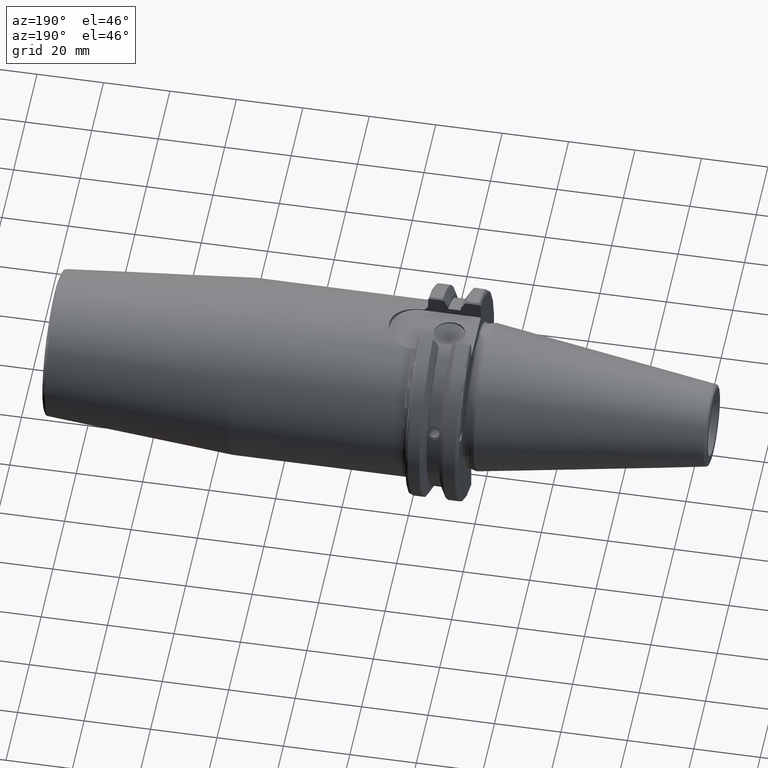
[diagram: clean part render]
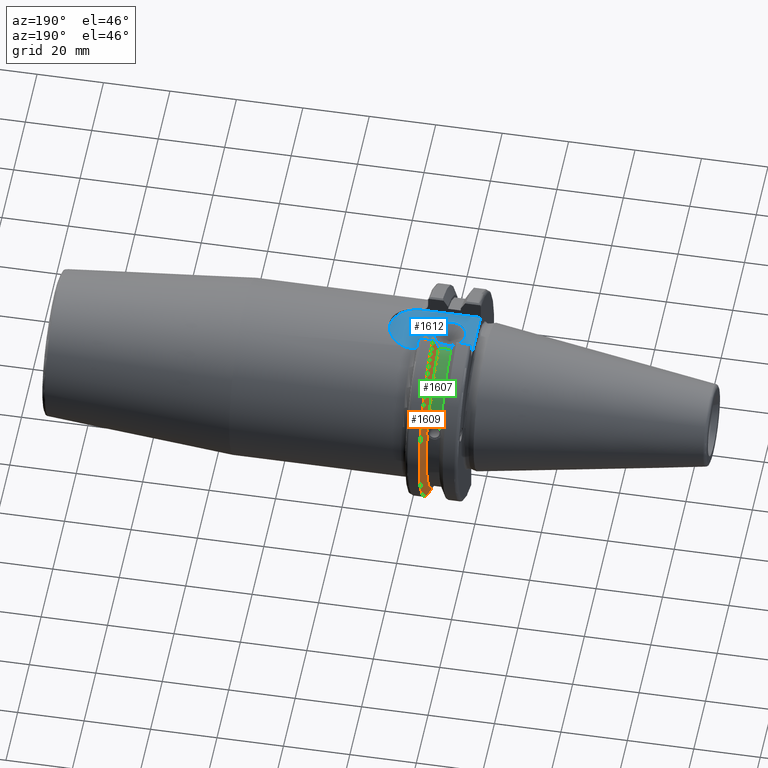
[diagram: same view with three faces highlighted in distinct colors, each labeled with its STEP entity id]
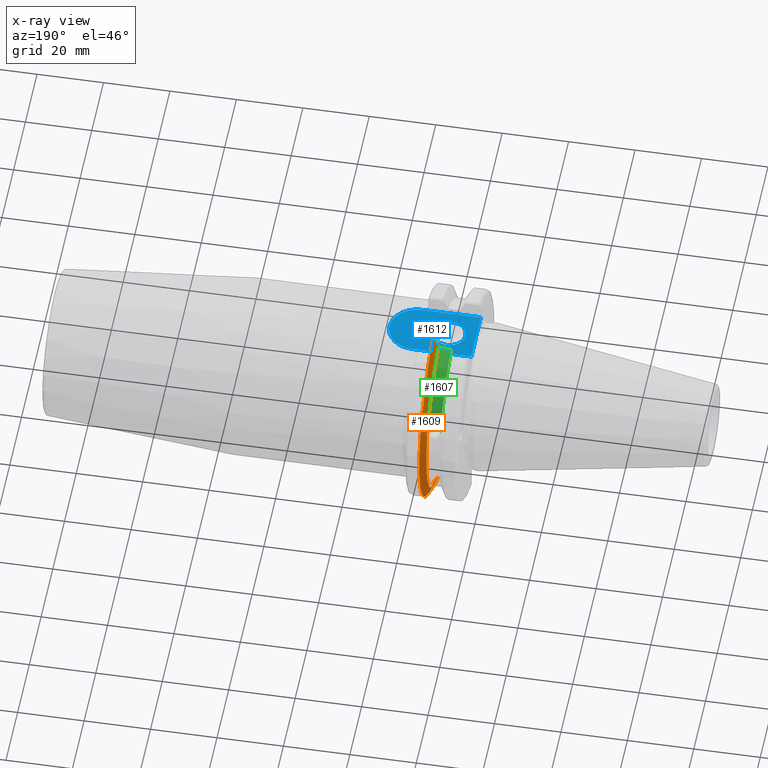
[diagram: x-ray of the same camera — body ghosted, the three highlighted faces saturated]
A machine part, auxiliary view with three faces highlighted in distinct colors.
The next image is the same camera in x-ray (body ghosted, the three faces saturated) — at least one of them is partly hidden behind the body in this view.
Their STEP definitions:

[orange] entity #1609 — the highlighted conical surface has half-angle 60 deg.
#23=(
BOUNDED_CURVE()
B_SPLINE_CURVE(2,(#2938,#2939,#2940),.UNSPECIFIED.,.F.,.F.)
B_SPLINE_CURVE_WITH_KNOTS((3,3),(0.329353533631226,0.393258405001025),
 .UNSPECIFIED.)
CURVE()
GEOMETRIC_REPRESENTATION_ITEM()
RATIONAL_B_SPLINE_CURVE((1.00047644010577,1.00028444218285,1.))
REPRESENTATION_ITEM('')
);
#24=(
BOUNDED_CURVE()
B_SPLINE_CURVE(2,(#2952,#2953,#2954),.UNSPECIFIED.,.F.,.F.)
B_SPLINE_CURVE_WITH_KNOTS((3,3),(0.0550586467393769,0.331607789535852),
 .UNSPECIFIED.)
CURVE()
GEOMETRIC_REPRESENTATION_ITEM()
RATIONAL_B_SPLINE_CURVE((1.00031614444922,1.00095203903643,1.))
REPRESENTATION_ITEM('')
);
#29=(
BOUNDED_CURVE()
B_SPLINE_CURVE(2,(#3108,#3109,#3110),.UNSPECIFIED.,.F.,.F.)
B_SPLINE_CURVE_WITH_KNOTS((3,3),(0.,0.276549142795274),.UNSPECIFIED.)
CURVE()
GEOMETRIC_REPRESENTATION_ITEM()
RATIONAL_B_SPLINE_CURVE((1.,1.00095203903599,1.00031614444907))
REPRESENTATION_ITEM('')
);
#30=(
BOUNDED_CURVE()
B_SPLINE_CURVE(2,(#3126,#3127,#3128),.UNSPECIFIED.,.F.,.F.)
B_SPLINE_CURVE_WITH_KNOTS((3,3),(0.,0.0639048713675655),.UNSPECIFIED.)
CURVE()
GEOMETRIC_REPRESENTATION_ITEM()
RATIONAL_B_SPLINE_CURVE((1.,1.00028444218286,1.00047644010578))
REPRESENTATION_ITEM('')
);
#113=CONICAL_SURFACE('',#1817,30.3546886482472,1.0471975511966);
#207=FACE_OUTER_BOUND('',#313,.T.);
#313=EDGE_LOOP('',(#1447,#1448,#1449,#1450,#1451,#1452,#1453,#1454,#1455));
#369=CIRCLE('',#1748,28.9593772964944);
#392=CIRCLE('',#1803,31.75);
#399=CIRCLE('',#1818,28.9593772964944);
#596=B_SPLINE_CURVE_WITH_KNOTS('',3,(#2744,#2745,#2746,#2747,#2748,#2749,
#2750,#2751),.UNSPECIFIED.,.F.,.F.,(4,2,2,4),(0.451995700189023,0.464547828547662,
0.504528771685167,0.544509714822673),.UNSPECIFIED.);
#600=B_SPLINE_CURVE_WITH_KNOTS('',3,(#2806,#2807,#2808,#2809,#2810,#2811,
#2812,#2813),.UNSPECIFIED.,.F.,.F.,(4,2,2,4),(0.544509714822673,0.584490657960178,
0.624471601097683,0.637023729456323),.UNSPECIFIED.);
#699=VERTEX_POINT('',#2741);
#700=VERTEX_POINT('',#2743);
#707=VERTEX_POINT('',#2804);
#716=VERTEX_POINT('',#2846);
#739=VERTEX_POINT('',#2935);
#740=VERTEX_POINT('',#2937);
#765=VERTEX_POINT('',#3105);
#766=VERTEX_POINT('',#3107);
#769=VERTEX_POINT('',#3124);
#891=EDGE_CURVE('',#700,#699,#596,.T.);
#899=EDGE_CURVE('',#699,#707,#600,.T.);
#911=EDGE_CURVE('',#716,#700,#369,.T.);
#943=EDGE_CURVE('',#739,#740,#23,.T.);
#948=EDGE_CURVE('',#739,#716,#24,.T.);
#988=EDGE_CURVE('',#766,#765,#29,.T.);
#997=EDGE_CURVE('',#769,#765,#30,.T.);
#998=EDGE_CURVE('',#740,#769,#392,.T.);
#1008=EDGE_CURVE('',#707,#766,#399,.T.);
#1447=ORIENTED_EDGE('',*,*,#891,.T.);
#1448=ORIENTED_EDGE('',*,*,#899,.T.);
#1449=ORIENTED_EDGE('',*,*,#1008,.T.);
#1450=ORIENTED_EDGE('',*,*,#988,.T.);
#1451=ORIENTED_EDGE('',*,*,#997,.F.);
#1452=ORIENTED_EDGE('',*,*,#998,.F.);
#1453=ORIENTED_EDGE('',*,*,#943,.F.);
#1454=ORIENTED_EDGE('',*,*,#948,.T.);
#1455=ORIENTED_EDGE('',*,*,#911,.T.);
#1609=ADVANCED_FACE('',(#207),#113,.T.);
#1748=AXIS2_PLACEMENT_3D('',#2847,#2088,#2089);
#1803=AXIS2_PLACEMENT_3D('',#3130,#2237,#2238);
#1817=AXIS2_PLACEMENT_3D('',#3150,#2268,#2269);
#1818=AXIS2_PLACEMENT_3D('',#3151,#2270,#2271);
#2088=DIRECTION('center_axis',(1.,0.,0.));
#2089=DIRECTION('ref_axis',(0.,0.,-1.));
#2237=DIRECTION('center_axis',(1.,0.,0.));
#2238=DIRECTION('ref_axis',(0.,0.,-1.));
#2268=DIRECTION('center_axis',(1.,0.,0.));
#2269=DIRECTION('ref_axis',(0.,1.,0.));
#2270=DIRECTION('center_axis',(1.,0.,0.));
#2271=DIRECTION('ref_axis',(0.,0.,-1.));
#2741=CARTESIAN_POINT('',(13.2341,27.51401829017,10.0142836826778));
#2743=CARTESIAN_POINT('',(13.0491,27.4956274489925,9.09043478536244));
#2744=CARTESIAN_POINT('Ctrl Pts',(13.0491,27.4956274489925,9.09043478536245));
#2745=CARTESIAN_POINT('Ctrl Pts',(13.0632204071996,27.5087667900418,9.12860597076217));
#2746=CARTESIAN_POINT('Ctrl Pts',(13.0766929817857,27.5206055003513,9.16696618806877));
#2747=CARTESIAN_POINT('Ctrl Pts',(13.130081441159,27.5642934663232,9.32791534028656));
#2748=CARTESIAN_POINT('Ctrl Pts',(13.1682197084175,27.5867382255984,9.46717946402648));
#2749=CARTESIAN_POINT('Ctrl Pts',(13.2204106446058,27.5847569104122,9.74771639360672));
#2750=CARTESIAN_POINT('Ctrl Pts',(13.2341,27.559599249844,9.8890510252165));
#2751=CARTESIAN_POINT('Ctrl Pts',(13.2341,27.51401829017,10.0142836826778));
#2804=CARTESIAN_POINT('',(13.0491,26.9060914640648,10.7101715919071));
#2806=CARTESIAN_POINT('Ctrl Pts',(13.2341,27.51401829017,10.0142836826778));
#2807=CARTESIAN_POINT('Ctrl Pts',(13.2341,27.4684373304961,10.139516340139));
#2808=CARTESIAN_POINT('Ctrl Pts',(13.2204106446058,27.3968610665578,10.2639559818059));
#2809=CARTESIAN_POINT('Ctrl Pts',(13.1682197084175,27.2180531796526,10.4801333026531));
#2810=CARTESIAN_POINT('Ctrl Pts',(13.130081441159,27.1113422433189,10.5723885976054));
#2811=CARTESIAN_POINT('Ctrl Pts',(13.0766929817857,26.9744191989197,10.6676007180674));
#2812=CARTESIAN_POINT('Ctrl Pts',(13.0632204071996,26.9406927482839,10.6893765730703));
#2813=CARTESIAN_POINT('Ctrl Pts',(13.0491,26.9060914640648,10.7101715919071));
#2846=CARTESIAN_POINT('',(13.0491,8.19,-27.7771386827498));
#2847=CARTESIAN_POINT('Origin',(13.0491,0.,0.));
#2935=CARTESIAN_POINT('',(14.3815146964874,8.19,-30.1755016258903));
#2937=CARTESIAN_POINT('',(14.6602667690756,8.67204822802685,-30.5427254764662));
#2938=CARTESIAN_POINT('Ctrl Pts',(14.3815146964874,8.19,-30.1755016258903));
#2939=CARTESIAN_POINT('Ctrl Pts',(14.5192085187884,8.42917748263464,-30.3577067892692));
#2940=CARTESIAN_POINT('Ctrl Pts',(14.6602667690756,8.67204822802686,-30.5427254764662));
#2952=CARTESIAN_POINT('Ctrl Pts',(14.3815146964874,8.18999999999999,-30.1755016258903));
#2953=CARTESIAN_POINT('Ctrl Pts',(13.687736438474,8.19,-28.9303689539668));
#2954=CARTESIAN_POINT('Ctrl Pts',(13.0491,8.19,-27.7771386827498));
#3105=CARTESIAN_POINT('',(14.3815146964874,8.19,30.1755016258903));
#3107=CARTESIAN_POINT('',(13.0491,8.19,27.7771386827498));
#3108=CARTESIAN_POINT('Ctrl Pts',(13.0491,8.19,27.7771386827498));
#3109=CARTESIAN_POINT('Ctrl Pts',(13.687736438489,8.19,28.9303689539938));
#3110=CARTESIAN_POINT('Ctrl Pts',(14.3815146964874,8.19,30.1755016258903));
#3124=CARTESIAN_POINT('',(14.6602667690756,8.67204822802685,30.5427254764662));
#3126=CARTESIAN_POINT('Ctrl Pts',(14.6602667690756,8.67204822802687,30.5427254764662));
#3127=CARTESIAN_POINT('Ctrl Pts',(14.5192085187837,8.42917748262644,30.357706789263));
#3128=CARTESIAN_POINT('Ctrl Pts',(14.3815146964874,8.19,30.1755016258903));
#3130=CARTESIAN_POINT('Origin',(14.6602667690756,0.,0.));
#3150=CARTESIAN_POINT('Origin',(13.8546833845378,0.,0.));
#3151=CARTESIAN_POINT('Origin',(13.0491,0.,0.));

[blue] entity #1612 — the highlighted planar face has unit normal (0, 0, 1).
#46=FACE_BOUND('',#317,.T.);
#79=PLANE('',#1821);
#210=FACE_OUTER_BOUND('',#316,.T.);
#316=EDGE_LOOP('',(#1464,#1465,#1466,#1467));
#317=EDGE_LOOP('',(#1468));
#325=CIRCLE('',#1643,8.19);
#394=CIRCLE('',#1809,4.7625);
#457=LINE('',#2895,#545);
#463=LINE('',#2990,#551);
#481=LINE('',#3117,#569);
#545=VECTOR('',#2139,10.);
#551=VECTOR('',#2163,10.);
#569=VECTOR('',#2223,10.);
#619=VERTEX_POINT('',#2321);
#620=VERTEX_POINT('',#2323);
#726=VERTEX_POINT('',#2880);
#733=VERTEX_POINT('',#2893);
#772=VERTEX_POINT('',#3140);
#777=EDGE_CURVE('',#620,#619,#325,.T.);
#934=EDGE_CURVE('',#733,#726,#457,.T.);
#954=EDGE_CURVE('',#733,#620,#463,.T.);
#993=EDGE_CURVE('',#619,#726,#481,.T.);
#1002=EDGE_CURVE('',#772,#772,#394,.T.);
#1464=ORIENTED_EDGE('',*,*,#934,.F.);
#1465=ORIENTED_EDGE('',*,*,#954,.T.);
#1466=ORIENTED_EDGE('',*,*,#777,.T.);
#1467=ORIENTED_EDGE('',*,*,#993,.T.);
#1468=ORIENTED_EDGE('',*,*,#1002,.T.);
#1612=ADVANCED_FACE('',(#210,#46),#79,.T.);
#1643=AXIS2_PLACEMENT_3D('',#2324,#1836,#1837);
#1809=AXIS2_PLACEMENT_3D('',#3141,#2251,#2252);
#1821=AXIS2_PLACEMENT_3D('',#3154,#2276,#2277);
#1836=DIRECTION('center_axis',(0.,0.,1.));
#1837=DIRECTION('ref_axis',(5.42233467460394E-16,-1.,0.));
#2139=DIRECTION('',(0.,1.,0.));
#2163=DIRECTION('',(1.,7.45324548000105E-16,0.));
#2223=DIRECTION('',(-1.,-1.86331137000026E-16,0.));
#2251=DIRECTION('center_axis',(0.,0.,-1.));
#2252=DIRECTION('ref_axis',(1.,0.,0.));
#2276=DIRECTION('center_axis',(0.,0.,1.));
#2277=DIRECTION('ref_axis',(1.,0.,0.));
#2321=CARTESIAN_POINT('',(21.05,8.19,25.));
#2323=CARTESIAN_POINT('',(21.05,-8.19,25.));
#2324=CARTESIAN_POINT('Origin',(21.05,0.,25.));
#2880=CARTESIAN_POINT('',(3.17499999999999,8.18999999999999,25.));
#2893=CARTESIAN_POINT('',(3.175,-8.19000000000001,25.));
#2895=CARTESIAN_POINT('',(3.175,15.875,25.));
#2990=CARTESIAN_POINT('',(3.175,-8.19000000000001,25.));
#3117=CARTESIAN_POINT('',(21.05,8.19,25.));
#3140=CARTESIAN_POINT('',(6.3716,-5.83238038093927E-16,25.));
#3141=CARTESIAN_POINT('Origin',(11.1341,0.,25.));
#3154=CARTESIAN_POINT('Origin',(15.7075,0.,25.));

[green] entity #1607 — the highlighted cylindrical surface (partial cylindrical patch) has radius 28.15 mm, axis along (1, 0, 0).
#205=FACE_OUTER_BOUND('',#311,.T.);
#311=EDGE_LOOP('',(#1439,#1440,#1441,#1442));
#395=CIRCLE('',#1811,28.15);
#396=CIRCLE('',#1813,28.15);
#478=LINE('',#3114,#566);
#566=VECTOR('',#2220,10.);
#599=B_SPLINE_CURVE_WITH_KNOTS('',3,(#2789,#2790,#2791,#2792,#2793,#2794,
#2795,#2796,#2797,#2798,#2799,#2800,#2801,#2802,#2803),.UNSPECIFIED.,.F.,
 .F.,(4,2,2,3,2,2,4),(-0.231446873660082,-0.158271583089134,-0.0791357915445672,
0.,0.0791357915445672,0.158271583089134,0.231446873660465),
 .UNSPECIFIED.);
#705=VERTEX_POINT('',#2786);
#706=VERTEX_POINT('',#2788);
#767=VERTEX_POINT('',#3111);
#768=VERTEX_POINT('',#3113);
#897=EDGE_CURVE('',#706,#705,#599,.T.);
#990=EDGE_CURVE('',#768,#767,#478,.T.);
#1004=EDGE_CURVE('',#705,#768,#395,.T.);
#1005=EDGE_CURVE('',#706,#767,#396,.T.);
#1439=ORIENTED_EDGE('',*,*,#897,.T.);
#1440=ORIENTED_EDGE('',*,*,#1004,.T.);
#1441=ORIENTED_EDGE('',*,*,#990,.T.);
#1442=ORIENTED_EDGE('',*,*,#1005,.F.);
#1525=CYLINDRICAL_SURFACE('',#1812,28.15);
#1607=ADVANCED_FACE('',(#205),#1525,.T.);
#1811=AXIS2_PLACEMENT_3D('',#3144,#2256,#2257);
#1812=AXIS2_PLACEMENT_3D('',#3145,#2258,#2259);
#1813=AXIS2_PLACEMENT_3D('',#3146,#2260,#2261);
#2220=DIRECTION('',(1.,0.,0.));
#2256=DIRECTION('center_axis',(1.,0.,0.));
#2257=DIRECTION('ref_axis',(0.,0.,-1.));
#2258=DIRECTION('center_axis',(1.,0.,0.));
#2259=DIRECTION('ref_axis',(0.,1.,0.));
#2260=DIRECTION('center_axis',(1.,0.,0.));
#2261=DIRECTION('ref_axis',(0.,0.,-1.));
#2786=CARTESIAN_POINT('',(9.2191,26.1451788594704,10.4332220529567));
#2788=CARTESIAN_POINT('',(13.0491,26.1451788594704,10.4332220529568));
#2789=CARTESIAN_POINT('Ctrl Pts',(13.0491,26.1451788594704,10.4332220529568));
#2790=CARTESIAN_POINT('Ctrl Pts',(12.9428694290343,26.0576536126147,10.6525563316816));
#2791=CARTESIAN_POINT('Ctrl Pts',(12.791379862294,25.9751489313128,10.8509873904882));
#2792=CARTESIAN_POINT('Ctrl Pts',(12.4326293734259,25.8346412777187,11.1816210830117));
#2793=CARTESIAN_POINT('Ctrl Pts',(12.1965549887012,25.7695111693635,11.3298867884858));
#2794=CARTESIAN_POINT('Ctrl Pts',(11.6791874573612,25.6822868299377,11.5262389251846));
#2795=CARTESIAN_POINT('Ctrl Pts',(11.3978859718152,25.6603958057616,11.5743935949859));
#2796=CARTESIAN_POINT('Ctrl Pts',(11.1341,25.6603958057616,11.5743935949859));
#2797=CARTESIAN_POINT('Ctrl Pts',(10.8703140281848,25.6603958057616,11.5743935949859));
#2798=CARTESIAN_POINT('Ctrl Pts',(10.5890125426388,25.6822868299377,11.5262389251846));
#2799=CARTESIAN_POINT('Ctrl Pts',(10.0716450112988,25.7695111693635,11.3298867884858));
#2800=CARTESIAN_POINT('Ctrl Pts',(9.83557062657411,25.8346412777187,11.1816210830117));
#2801=CARTESIAN_POINT('Ctrl Pts',(9.4768201377051,25.9751489313131,10.8509873904873));
#2802=CARTESIAN_POINT('Ctrl Pts',(9.32533057097183,26.0576536126096,10.6525563316942));
#2803=CARTESIAN_POINT('Ctrl Pts',(9.2191,26.1451788594704,10.4332220529567));
#3111=CARTESIAN_POINT('',(13.0491,8.19,26.932255754021));
#3113=CARTESIAN_POINT('',(9.2191,8.19,26.932255754021));
#3114=CARTESIAN_POINT('',(11.1341,8.19,26.932255754021));
#3144=CARTESIAN_POINT('Origin',(9.2191,0.,0.));
#3145=CARTESIAN_POINT('Origin',(11.1341,0.,0.));
#3146=CARTESIAN_POINT('Origin',(13.0491,0.,0.));